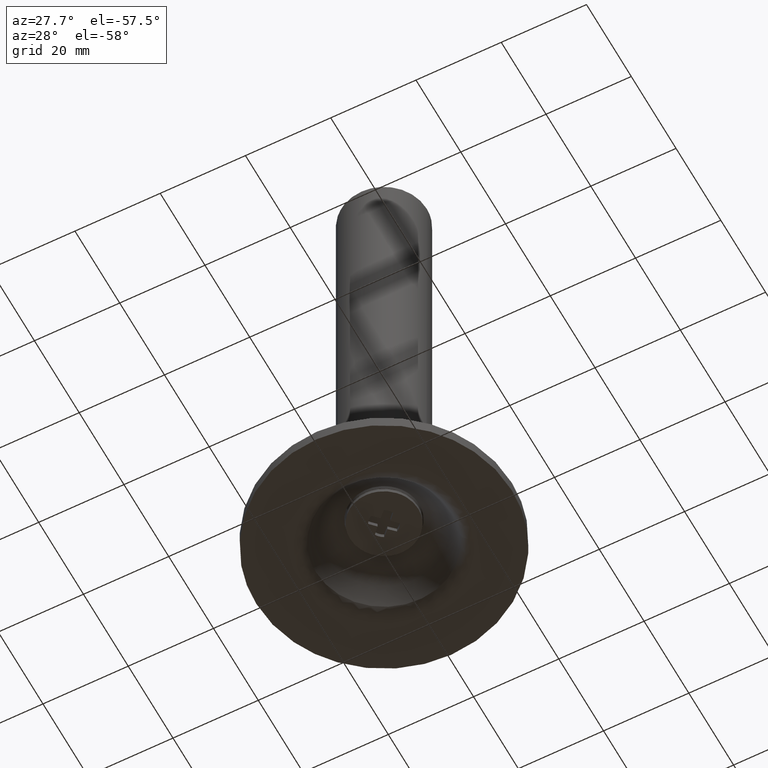
[diagram: clean part render]
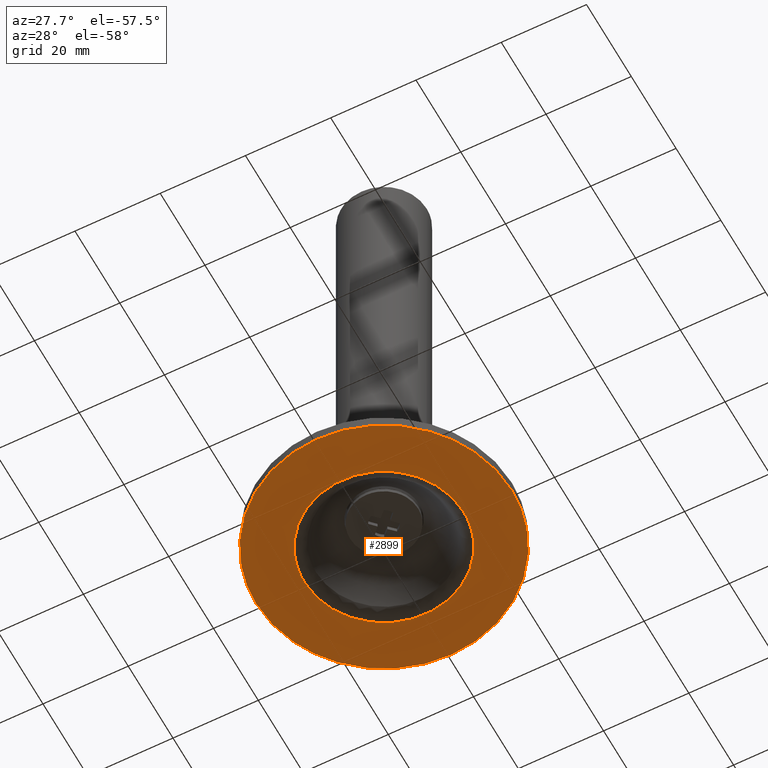
[diagram: same view with one face highlighted and labeled with its STEP entity id]
A machine part, auxiliary view. The second image highlights one B-rep face of the part: STEP entity #2899.
In plain terms, the highlighted face is a freeform B-spline surface patch.
Its self-contained STEP definition (entity closure, byte-faithful):
#2375=CARTESIAN_POINT('',(21.761230891194320,-20.650637056703690,2.012279E-016));
#2376=VERTEX_POINT('',#2375);
#2382=CARTESIAN_POINT('',(30.0,0.0,0.0));
#2383=VERTEX_POINT('',#2382);
#2384=CARTESIAN_POINT('',(30.0,0.0,0.0));
#2385=CARTESIAN_POINT('',(30.000419515974809,-2.253970820688952,2.196358E-017));
#2386=CARTESIAN_POINT('',(29.590269978847100,-5.871916545401108,5.721826E-017));
#2387=CARTESIAN_POINT('',(28.230835860867280,-10.367608884154940,1.010261E-016));
#2388=CARTESIAN_POINT('',(26.697434428904131,-13.846130230542739,1.349221E-016));
#2389=CARTESIAN_POINT('',(24.660481669365481,-17.269190000264160,1.682778E-016));
#2390=CARTESIAN_POINT('',(22.822854922816280,-19.532053420265001,1.903280E-016));
#2391=CARTESIAN_POINT('',(21.761230891194320,-20.650637056703690,2.012279E-016));
#2392=B_SPLINE_CURVE_WITH_KNOTS('',3,(#2384,#2385,#2386,#2387,#2388,#2389,#2390,#2391),.UNSPECIFIED.,.F.,.U.,(4,1,1,1,1,4),(0.000000015807675,6.761801051471448,10.854473476168630,14.057407197869709,18.150091050356171,22.776580013576851),.UNSPECIFIED.);
#2393=EDGE_CURVE('',#2383,#2376,#2392,.T.);
#2395=CARTESIAN_POINT('',(0.000001285255829,29.999999999999979,0.0));
#2396=VERTEX_POINT('',#2395);
#2397=CARTESIAN_POINT('',(0.000001285255829,29.999999999999979,0.0));
#2398=CARTESIAN_POINT('',(1.472616346920259,30.000082548014991,0.0));
#2399=CARTESIAN_POINT('',(4.049670634777124,29.809837524544822,0.0));
#2400=CARTESIAN_POINT('',(8.203324890289700,28.957201081564492,0.0));
#2401=CARTESIAN_POINT('',(11.917517081191740,27.641086521277181,0.0));
#2402=CARTESIAN_POINT('',(15.621490069038630,25.704784940489191,0.0));
#2403=CARTESIAN_POINT('',(19.004852102437141,23.352994727966969,0.0));
#2404=CARTESIAN_POINT('',(22.053966321153990,20.485423043630622,0.0));
#2405=CARTESIAN_POINT('',(24.397092368049119,17.557641329869760,0.0));
#2406=CARTESIAN_POINT('',(26.312336689111170,14.553632018424629,0.0));
#2407=CARTESIAN_POINT('',(27.840560976180580,11.398005703075549,0.0));
#2408=CARTESIAN_POINT('',(28.910737178602190,8.191367312854254,0.0));
#2409=CARTESIAN_POINT('',(29.756373070895350,4.479155697700390,0.0));
#2410=CARTESIAN_POINT('',(30.000202255076719,1.840794827647816,0.0));
#2411=CARTESIAN_POINT('',(30.0,0.0,0.0));
#2412=B_SPLINE_CURVE_WITH_KNOTS('',3,(#2397,#2398,#2399,#2400,#2401,#2402,#2403,#2404,#2405,#2406,#2407,#2408,#2409,#2410,#2411),.UNSPECIFIED.,.F.,.U.,(4,1,1,1,1,1,1,1,1,1,1,1,4),(0.000000062463350,4.417839930469896,7.731258237705163,12.701382815081420,16.198881820865392,20.248612139342161,25.034594490545299,28.716135544002441,31.477317389359719,35.711128584388327,39.208627142801710,41.601626784429143,47.123963003160327),.UNSPECIFIED.);
#2413=EDGE_CURVE('',#2396,#2383,#2412,.T.);
#2415=CARTESIAN_POINT('',(-21.761230891194430,20.650637056703800,2.012279E-016));
#2416=VERTEX_POINT('',#2415);
#2417=CARTESIAN_POINT('',(-21.761230891194430,20.650637056703800,2.012279E-016));
#2418=CARTESIAN_POINT('',(-20.452045249108149,22.030578430989770,1.891218E-016));
#2419=CARTESIAN_POINT('',(-18.338425449310940,23.870708689295519,1.695770E-016));
#2420=CARTESIAN_POINT('',(-14.987247070362610,26.051789460151671,1.385883E-016));
#2421=CARTESIAN_POINT('',(-11.706585071869180,27.728158699407039,1.082518E-016));
#2422=CARTESIAN_POINT('',(-8.340286633281346,28.891988019994720,7.712334E-017));
#2423=CARTESIAN_POINT('',(-4.311453418524470,29.774168386443119,3.986838E-017));
#2424=CARTESIAN_POINT('',(-1.775342897569864,30.000195806537771,1.641676E-017));
#2425=CARTESIAN_POINT('',(0.000001285255829,29.999999999999979,0.0));
#2426=B_SPLINE_CURVE_WITH_KNOTS('',3,(#2417,#2418,#2419,#2420,#2421,#2422,#2423,#2424,#2425),.UNSPECIFIED.,.F.,.U.,(4,1,1,1,1,1,4),(0.000000017499726,5.706416648892173,8.369414665329236,11.983498020217461,16.738826669133040,19.021394667749810,24.347384993616579),.UNSPECIFIED.);
#2427=EDGE_CURVE('',#2416,#2396,#2426,.T.);
#2457=CARTESIAN_POINT('',(-30.0,0.0,0.0));
#2458=VERTEX_POINT('',#2457);
#2459=CARTESIAN_POINT('',(-30.0,0.0,0.0));
#2460=CARTESIAN_POINT('',(-30.000068682624029,1.423536801254328,1.387150E-017));
#2461=CARTESIAN_POINT('',(-29.809654632438349,4.092645093975104,3.988034E-017));
#2462=CARTESIAN_POINT('',(-28.952277691115359,8.224086585077515,8.013873E-017));
#2463=CARTESIAN_POINT('',(-27.467588324607782,12.368473653902440,1.205233E-016));
#2464=CARTESIAN_POINT('',(-25.094448984907132,16.699823919535280,1.627296E-016));
#2465=CARTESIAN_POINT('',(-22.986245824839799,19.360011219462368,1.886516E-016));
#2466=CARTESIAN_POINT('',(-21.761230891194430,20.650637056703800,2.012279E-016));
#2467=B_SPLINE_CURVE_WITH_KNOTS('',3,(#2459,#2460,#2461,#2462,#2463,#2464,#2465,#2466),.UNSPECIFIED.,.F.,.U.,(4,1,1,1,1,4),(0.000000015810826,4.270606151526916,8.007401124715250,12.633879855271140,17.438319538125509,22.776580013576918),.UNSPECIFIED.);
#2468=EDGE_CURVE('',#2458,#2416,#2467,.T.);
#2470=CARTESIAN_POINT('',(-0.000001285256468,-29.999999999999972,0.0));
#2471=VERTEX_POINT('',#2470);
#2472=CARTESIAN_POINT('',(-0.000001285256468,-29.999999999999972,0.0));
#2473=CARTESIAN_POINT('',(-2.208979523332149,-30.000439176169181,0.0));
#2474=CARTESIAN_POINT('',(-5.338107173978826,-29.652771202403219,0.0));
#2475=CARTESIAN_POINT('',(-9.307781218601866,-28.567151572554302,0.0));
#2476=CARTESIAN_POINT('',(-12.410187004064049,-27.392332663931128,0.0));
#2477=CARTESIAN_POINT('',(-15.626483467089400,-25.711054342715521,0.0));
#2478=CARTESIAN_POINT('',(-18.742635781014599,-23.516377352816129,0.0));
#2479=CARTESIAN_POINT('',(-21.619732344962621,-20.924805633604532,0.0));
#2480=CARTESIAN_POINT('',(-23.973842837454551,-18.161649611901328,0.0));
#2481=CARTESIAN_POINT('',(-26.002800900090939,-15.084306023837110,0.0));
#2482=CARTESIAN_POINT('',(-27.373624877375931,-12.402030179653559,0.0));
#2483=CARTESIAN_POINT('',(-28.754886982736888,-8.854085300975033,0.0));
#2484=CARTESIAN_POINT('',(-29.745412638863989,-4.847373684794547,0.0));
#2485=CARTESIAN_POINT('',(-30.000069173030919,-1.533968703163960,0.0));
#2486=CARTESIAN_POINT('',(-30.0,0.0,0.0));
#2487=B_SPLINE_CURVE_WITH_KNOTS('',3,(#2472,#2473,#2474,#2475,#2476,#2477,#2478,#2479,#2480,#2481,#2482,#2483,#2484,#2485,#2486),.UNSPECIFIED.,.F.,.U.,(4,1,1,1,1,1,1,1,1,1,1,1,4),(0.000000062526524,6.626804361821172,9.387973034884901,12.333227610701689,16.567022773582622,20.248612139377169,23.746021498165170,28.163900118080580,31.109176673164800,34.790736097233612,37.183759473597860,42.522044414064752,47.123963003159730),.UNSPECIFIED.);
#2488=EDGE_CURVE('',#2471,#2458,#2487,.T.);
#2490=CARTESIAN_POINT('',(21.761230891194320,-20.650637056703690,2.012279E-016));
#2491=CARTESIAN_POINT('',(20.277578068370651,-22.214686019085740,1.875085E-016));
#2492=CARTESIAN_POINT('',(17.943419251609718,-24.195054461077550,1.659243E-016));
#2493=CARTESIAN_POINT('',(14.159634606130849,-26.523271357241828,1.309353E-016));
#2494=CARTESIAN_POINT('',(10.647746704138690,-28.165967546857161,9.846061E-017));
#2495=CARTESIAN_POINT('',(5.769701912513412,-29.613640507543980,5.335293E-017));
#2496=CARTESIAN_POINT('',(2.092375667636415,-30.000337793668649,1.934838E-017));
#2497=CARTESIAN_POINT('',(-0.000001285256468,-29.999999999999972,0.0));
#2498=B_SPLINE_CURVE_WITH_KNOTS('',3,(#2490,#2491,#2492,#2493,#2494,#2495,#2496,#2497),.UNSPECIFIED.,.F.,.U.,(4,1,1,1,1,4),(0.000000017499790,6.467275874160933,9.130271021566784,13.314954178382591,18.070324297140441,24.347384993617140),.UNSPECIFIED.);
#2499=EDGE_CURVE('',#2376,#2471,#2498,.T.);
#2644=CARTESIAN_POINT('',(-17.362253347923669,-6.874202396565321,4.315978E-016));
#2645=VERTEX_POINT('',#2644);
#2657=CARTESIAN_POINT('',(-18.673577589738851,0.0,0.0));
#2658=VERTEX_POINT('',#2657);
#2659=CARTESIAN_POINT('',(-17.362253347923669,-6.874202396565321,4.315978E-016));
#2660=CARTESIAN_POINT('',(-17.699708235000660,-6.021946712732804,3.760679E-016));
#2661=CARTESIAN_POINT('',(-18.402655599326462,-3.776417021377144,2.319087E-016));
#2662=CARTESIAN_POINT('',(-18.673864389339570,-1.429983997520410,8.662605E-017));
#2663=CARTESIAN_POINT('',(-18.673577589738851,0.0,0.0));
#2664=B_SPLINE_CURVE_WITH_KNOTS('',3,(#2659,#2660,#2661,#2662,#2663),.UNSPECIFIED.,.F.,.U.,(4,1,4),(4.302859E-009,2.749916890353310,7.039783078021220),.UNSPECIFIED.);
#2665=EDGE_CURVE('',#2645,#2658,#2664,.T.);
#2667=CARTESIAN_POINT('',(17.362253347923669,6.874202396565314,4.932547E-016));
#2668=VERTEX_POINT('',#2667);
#2669=CARTESIAN_POINT('',(-18.673577589738851,0.0,0.0));
#2670=CARTESIAN_POINT('',(-18.673579964635412,0.403305305254326,1.016066E-018));
#2671=CARTESIAN_POINT('',(-18.659406034504869,0.840209730059630,2.304013E-018));
#2672=CARTESIAN_POINT('',(-18.627765876507191,1.309663031923875,3.904646E-018));
#2673=CARTESIAN_POINT('',(-18.619883775485111,1.410176698525134,4.261984E-018));
#2674=CARTESIAN_POINT('',(-18.609979671007640,1.544254105534850,4.730589E-018));
#2675=CARTESIAN_POINT('',(-18.572092790657500,1.979556510106952,6.327683E-018));
#2676=CARTESIAN_POINT('',(-18.516318337672089,2.446957610673935,8.241895E-018));
#2677=CARTESIAN_POINT('',(-18.450682053511951,2.878947442119786,1.019714E-017));
#2678=CARTESIAN_POINT('',(-18.428754241530431,3.011589973781238,1.082093E-017));
#2679=CARTESIAN_POINT('',(-18.412750382347859,3.111135789668157,1.128309E-017));
#2680=CARTESIAN_POINT('',(-18.259098434304441,4.005520058746315,1.556575E-017));
#2681=CARTESIAN_POINT('',(-17.778066623752711,5.968659132682212,2.686486E-017));
#2682=CARTESIAN_POINT('',(-16.990480022046789,7.834340836675514,4.196719E-017));
#2683=CARTESIAN_POINT('',(-16.416624428948200,8.899575820937423,5.223005E-017));
#2684=CARTESIAN_POINT('',(-16.367881438472018,8.987831492366990,5.309616E-017));
#2685=CARTESIAN_POINT('',(-16.303351773670212,9.105771413295118,5.424556E-017));
#2686=CARTESIAN_POINT('',(-15.660104556854019,10.247928647603841,6.561870E-017));
#2687=CARTESIAN_POINT('',(-14.411980345575961,12.012318012742190,8.654828E-017));
#2688=CARTESIAN_POINT('',(-12.273021554963700,14.161795082383430,1.202136E-016));
#2689=CARTESIAN_POINT('',(-10.140464509123630,15.756382066147211,1.523963E-016));
#2690=CARTESIAN_POINT('',(-8.543182733621547,16.626877505700580,1.756852E-016));
#2691=CARTESIAN_POINT('',(-7.717877746049376,17.004201981558150,1.875359E-016));
#2692=CARTESIAN_POINT('',(-7.625741423880946,17.045146591445889,1.888559E-016));
#2693=CARTESIAN_POINT('',(-7.503132859367421,17.100303475697860,1.906142E-016));
#2694=CARTESIAN_POINT('',(-7.379806464326159,17.153864982786569,1.923780E-016));
#2695=CARTESIAN_POINT('',(-7.255821464251974,17.205850132639270,1.941464E-016));
#2696=CARTESIAN_POINT('',(-7.163090487001746,17.245461180197658,1.954710E-016));
#2697=CARTESIAN_POINT('',(-7.069563473826423,17.283153412660649,1.968012E-016));
#2698=CARTESIAN_POINT('',(-7.007473346684387,17.308915361443191,1.976861E-016));
#2699=CARTESIAN_POINT('',(-6.352784482478645,17.572616501749820,2.069972E-016));
#2700=CARTESIAN_POINT('',(-5.715689808571288,17.790045148822369,2.159592E-016));
#2701=CARTESIAN_POINT('',(-5.036379141758844,17.981604790933879,2.254137E-016));
#2702=CARTESIAN_POINT('',(-4.971489892784160,17.999177919528378,2.263150E-016));
#2703=CARTESIAN_POINT('',(-4.874428390375297,18.026529989415671,2.276658E-016));
#2704=CARTESIAN_POINT('',(-4.776810321366566,18.051820936257620,2.290188E-016));
#2705=CARTESIAN_POINT('',(-4.711908715087487,18.069342757239038,2.299201E-016));
#2706=CARTESIAN_POINT('',(-4.191352992375213,18.204100115201790,2.371348E-016));
#2707=CARTESIAN_POINT('',(-3.665334823279329,18.317791683511540,2.443685E-016));
#2708=CARTESIAN_POINT('',(-3.102147650673723,18.413903924114130,2.520488E-016));
#2709=CARTESIAN_POINT('',(-3.002730423806417,18.430723579831529,2.534042E-016));
#2710=CARTESIAN_POINT('',(-1.741614804160024,18.632813922099711,2.705693E-016));
#2711=CARTESIAN_POINT('',(0.213590652044236,18.747840486663410,2.966821E-016));
#2712=CARTESIAN_POINT('',(2.995128300138612,18.482816499486511,3.327509E-016));
#2713=CARTESIAN_POINT('',(5.821783952522936,17.845370305881790,3.684774E-016));
#2714=CARTESIAN_POINT('',(8.844642653578367,16.576726202278120,4.052049E-016));
#2715=CARTESIAN_POINT('',(11.509357952288861,14.796037171941469,4.359122E-016));
#2716=CARTESIAN_POINT('',(13.473789801372099,13.001370293023561,4.573355E-016));
#2717=CARTESIAN_POINT('',(14.519647100087720,11.768929806122850,4.680434E-016));
#2718=CARTESIAN_POINT('',(15.020723897082179,11.094432995338479,4.729620E-016));
#2719=CARTESIAN_POINT('',(15.080028130582130,11.012896512576750,4.735398E-016));
#2720=CARTESIAN_POINT('',(15.199046881459131,10.850089292563091,4.747015E-016));
#2721=CARTESIAN_POINT('',(15.334356246698370,10.657599356415110,4.760036E-016));
#2722=CARTESIAN_POINT('',(15.467222355874410,10.463422602609601,4.772692E-016));
#2723=CARTESIAN_POINT('',(15.541641577790600,10.351453252858921,4.779700E-016));
#2724=CARTESIAN_POINT('',(15.746029705166370,10.043384785026250,4.798932E-016));
#2725=CARTESIAN_POINT('',(15.923971062919589,9.758141331414217,4.815247E-016));
#2726=CARTESIAN_POINT('',(16.094898578796020,9.468758820209722,4.830531E-016));
#2727=CARTESIAN_POINT('',(16.128487305438149,9.410526855048715,4.833500E-016));
#2728=CARTESIAN_POINT('',(16.179757736056722,9.323694250963563,4.838084E-016));
#2729=CARTESIAN_POINT('',(16.229178312881469,9.235796000204493,4.842397E-016));
#2730=CARTESIAN_POINT('',(16.262717506073582,9.177536323416193,4.845358E-016));
#2731=CARTESIAN_POINT('',(16.427389966156159,8.884546331003453,4.859726E-016));
#2732=CARTESIAN_POINT('',(16.569162629959440,8.617241151795660,4.871715E-016));
#2733=CARTESIAN_POINT('',(16.719379549028581,8.316582819049122,4.883980E-016));
#2734=CARTESIAN_POINT('',(16.748801608653810,8.256137119588024,4.886343E-016));
#2735=CARTESIAN_POINT('',(16.793855352442129,8.165920502772833,4.890020E-016));
#2736=CARTESIAN_POINT('',(16.836988808152071,8.074770978602595,4.893421E-016));
#2737=CARTESIAN_POINT('',(16.866361874738271,8.014302966342735,4.895777E-016));
#2738=CARTESIAN_POINT('',(17.053177060127918,7.619348769510648,4.910499E-016));
#2739=CARTESIAN_POINT('',(17.213790671348558,7.249179427283307,4.922386E-016));
#2740=CARTESIAN_POINT('',(17.362253347923669,6.874202396565314,4.932547E-016));
#2741=B_SPLINE_CURVE_WITH_KNOTS('',3,(#2669,#2670,#2671,#2672,#2673,#2674,#2675,#2676,#2677,#2678,#2679,#2680,#2681,#2682,#2683,#2684,#2685,#2686,#2687,#2688,#2689,#2690,#2691,#2692,#2693,#2694,#2695,#2696,#2697,#2698,#2699,#2700,#2701,#2702,#2703,#2704,#2705,#2706,#2707,#2708,#2709,#2710,#2711,#2712,#2713,#2714,#2715,#2716,#2717,#2718,#2719,#2720,#2721,#2722,#2723,#2724,#2725,#2726,#2727,#2728,#2729,#2730,#2731,#2732,#2733,#2734,#2735,#2736,#2737,#2738,#2739,#2740),.UNSPECIFIED.,.F.,.U.,(4,1,1,1,1,1,1,1,1,1,1,1,1,1,1,1,1,1,1,1,1,1,1,1,1,1,1,1,2,2,1,1,1,2,1,1,1,1,1,1,1,1,1,1,1,1,1,1,1,1,1,1,2,1,1,1,2,2,1,1,1,2,4),(0.000238171979490,1.210155685283127,1.310955715194567,1.411787883502647,1.512620051810764,1.714283292413178,2.722600585782367,2.924264986236274,3.025096696120606,3.125928406004881,3.226735240104702,5.747546341967386,9.175779852199696,9.276585269464171,9.377415837743961,9.478246406023693,9.679907551454647,13.309808777794020,15.931404116776260,18.754653982835510,21.275421487035072,21.376223765533481,21.477057954341099,21.577892143148691,21.779559886067499,21.880393310333091,21.981226734598671,22.082059566260870,22.182892397923158,24.199467874122750,24.300306934774760,24.401145995426742,24.501982765002278,24.602819534577780,26.115136385418442,26.215973107723659,26.316809830028859,26.417630608981490,30.047518590953018,32.164973953661793,34.786560705441673,38.718949229838692,41.945525176645127,44.365448515808289,46.684564513638932,46.785366576919643,46.886200069321262,46.987033561722903,47.390366596411027,47.592032242541691,47.692864617806329,47.793696993070981,48.701143749653973,48.801979825322881,48.902815900991797,49.003651013708712,49.104486126425613,50.011939957619433,50.112778001247889,50.213616044876353,50.314451938462177,50.415287832048037,51.625182167753962),.UNSPECIFIED.);
#2742=EDGE_CURVE('',#2658,#2668,#2741,.T.);
#2790=CARTESIAN_POINT('',(18.673577589738851,0.0,0.0));
#2791=VERTEX_POINT('',#2790);
#2792=CARTESIAN_POINT('',(17.362253347923669,6.874202396565314,4.932547E-016));
#2793=CARTESIAN_POINT('',(17.740237467024151,5.919681559729279,4.221762E-016));
#2794=CARTESIAN_POINT('',(18.423676913647160,3.666461653370946,2.571481E-016));
#2795=CARTESIAN_POINT('',(18.673779010151801,1.319972124250855,9.138565E-017));
#2796=CARTESIAN_POINT('',(18.673577589738851,0.0,0.0));
#2797=B_SPLINE_CURVE_WITH_KNOTS('',3,(#2792,#2793,#2794,#2795,#2796),.UNSPECIFIED.,.F.,.U.,(4,1,4),(4.302941E-009,3.079911756511686,7.039783078021211),.UNSPECIFIED.);
#2798=EDGE_CURVE('',#2668,#2791,#2797,.T.);
#2800=CARTESIAN_POINT('',(18.673577589738851,0.0,0.0));
#2801=CARTESIAN_POINT('',(18.673580293433989,-0.403305110482104,8.890536E-019));
#2802=CARTESIAN_POINT('',(18.659405859371951,-0.840209920036374,2.016014E-018));
#2803=CARTESIAN_POINT('',(18.627765893636649,-1.309663009025677,3.416565E-018));
#2804=CARTESIAN_POINT('',(18.619883767631929,-1.410176756077637,3.729236E-018));
#2805=CARTESIAN_POINT('',(18.609979576959859,-1.544254727966130,4.139267E-018));
#2806=CARTESIAN_POINT('',(18.572093315449891,-1.979553016493308,5.536709E-018));
#2807=CARTESIAN_POINT('',(18.516318173392751,-2.446958856046489,7.211662E-018));
#2808=CARTESIAN_POINT('',(18.450682014430601,-2.878947276943312,8.922496E-018));
#2809=CARTESIAN_POINT('',(18.428754529663721,-3.011590042806459,9.468309E-018));
#2810=CARTESIAN_POINT('',(18.412722466770528,-3.111127759219552,9.873012E-018));
#2811=CARTESIAN_POINT('',(18.179694776885921,-4.469345407352353,1.556015E-017));
#2812=CARTESIAN_POINT('',(17.622641107218691,-6.419111330799094,2.629593E-017));
#2813=CARTESIAN_POINT('',(16.767210811692308,-8.248557297317792,4.021461E-017));
#2814=CARTESIAN_POINT('',(16.416640529506150,-8.899582899701276,4.570112E-017));
#2815=CARTESIAN_POINT('',(16.367880960978280,-8.987831153221483,4.645915E-017));
#2816=CARTESIAN_POINT('',(16.303366447866399,-9.105781019391907,4.746472E-017));
#2817=CARTESIAN_POINT('',(15.791944532677620,-10.013567512264119,5.537612E-017));
#2818=CARTESIAN_POINT('',(14.584693833613169,-11.801343742664260,7.326871E-017));
#2819=CARTESIAN_POINT('',(12.489034296006640,-14.000374049366370,1.023347E-016));
#2820=CARTESIAN_POINT('',(10.140456351996820,-15.756371895273491,1.333468E-016));
#2821=CARTESIAN_POINT('',(8.543182676440207,-16.626879239378130,1.537246E-016));
#2822=CARTESIAN_POINT('',(7.717877761709055,-17.004201806197720,1.640939E-016));
#2823=CARTESIAN_POINT('',(7.625741426979670,-17.045146565978978,1.652489E-016));
#2824=CARTESIAN_POINT('',(7.503132858210410,-17.100303485208400,1.667874E-016));
#2825=CARTESIAN_POINT('',(7.379806464845265,-17.153864978520971,1.683307E-016));
#2826=CARTESIAN_POINT('',(7.255821464148047,-17.205850133492440,1.698781E-016));
#2827=CARTESIAN_POINT('',(7.163090487001736,-17.245461180197658,1.710371E-016));
#2828=CARTESIAN_POINT('',(7.069563473826573,-17.283153412660589,1.722010E-016));
#2829=CARTESIAN_POINT('',(7.007473248555570,-17.308915389006000,1.729754E-016));
#2830=CARTESIAN_POINT('',(6.352785134801207,-17.572616318632988,1.811225E-016));
#2831=CARTESIAN_POINT('',(5.715690231281267,-17.790045060589240,1.889643E-016));
#2832=CARTESIAN_POINT('',(5.036379085331579,-17.981604803059771,1.972370E-016));
#2833=CARTESIAN_POINT('',(4.971489892784322,-17.999177919528350,1.980256E-016));
#2834=CARTESIAN_POINT('',(4.874428390375287,-18.026529989415678,1.992076E-016));
#2835=CARTESIAN_POINT('',(4.776810321366567,-18.051820936257631,2.003915E-016));
#2836=CARTESIAN_POINT('',(4.711908586826567,-18.069342366630380,2.011801E-016));
#2837=CARTESIAN_POINT('',(4.191354184376289,-18.204103824857640,2.074929E-016));
#2838=CARTESIAN_POINT('',(3.665333620255117,-18.317787240299221,2.138224E-016));
#2839=CARTESIAN_POINT('',(3.102147772102330,-18.413904499605071,2.205427E-016));
#2840=CARTESIAN_POINT('',(3.002730980875661,-18.430737160861721,2.217287E-016));
#2841=CARTESIAN_POINT('',(2.007106878347007,-18.590173662341648,2.335860E-016));
#2842=CARTESIAN_POINT('',(0.394435687461762,-18.720197656866489,2.525093E-016));
#2843=CARTESIAN_POINT('',(-1.992455573042486,-18.609392005418560,2.798488E-016));
#2844=CARTESIAN_POINT('',(-4.319078952322280,-18.228061556213511,3.058955E-016));
#2845=CARTESIAN_POINT('',(-6.604751336131363,-17.520563912561329,3.307499E-016));
#2846=CARTESIAN_POINT('',(-8.779918297739076,-16.530696955792880,3.537048E-016));
#2847=CARTESIAN_POINT('',(-10.967743532376231,-15.201879465613560,3.760588E-016));
#2848=CARTESIAN_POINT('',(-13.114676139910321,-13.404365918262110,3.969069E-016));
#2849=CARTESIAN_POINT('',(-14.439498027754560,-11.876864046369020,4.088497E-016));
#2850=CARTESIAN_POINT('',(-15.020719431696691,-11.094429090456799,4.138416E-016));
#2851=CARTESIAN_POINT('',(-15.079975415068100,-11.012856596226110,4.143466E-016));
#2852=CARTESIAN_POINT('',(-15.159538783766781,-10.904480811434080,4.150272E-016));
#2853=CARTESIAN_POINT('',(-15.295822060945749,-10.712687039632449,4.161793E-016));
#2854=CARTESIAN_POINT('',(-15.429924467449530,-10.519351804142470,4.173028E-016));
#2855=CARTESIAN_POINT('',(-15.541660487124460,-10.351465395469351,4.182240E-016));
#2856=CARTESIAN_POINT('',(-15.746026336377950,-10.043382621761481,4.199065E-016));
#2857=CARTESIAN_POINT('',(-15.923971363120000,-9.758141524188037,4.213341E-016));
#2858=CARTESIAN_POINT('',(-16.094898578796041,-9.468758820209700,4.226715E-016));
#2859=CARTESIAN_POINT('',(-16.128487305438149,-9.410526855048717,4.229313E-016));
#2860=CARTESIAN_POINT('',(-16.179757736056700,-9.323694250963575,4.233324E-016));
#2861=CARTESIAN_POINT('',(-16.229178312881469,-9.235796000204484,4.237097E-016));
#2862=CARTESIAN_POINT('',(-16.262718766113341,-9.177537019046078,4.239689E-016));
#2863=CARTESIAN_POINT('',(-16.427381811472308,-8.884541850804508,4.252259E-016));
#2864=CARTESIAN_POINT('',(-16.569170882930649,-8.617245394463639,4.262752E-016));
#2865=CARTESIAN_POINT('',(-16.719378271574222,-8.316582165658996,4.273482E-016));
#2866=CARTESIAN_POINT('',(-16.748801608653800,-8.256137119588038,4.275550E-016));
#2867=CARTESIAN_POINT('',(-16.793855352442140,-8.165920502772821,4.278768E-016));
#2868=CARTESIAN_POINT('',(-16.836988808152050,-8.074770978602626,4.281743E-016));
#2869=CARTESIAN_POINT('',(-16.866361839067700,-8.014303026560302,4.283805E-016));
#2870=CARTESIAN_POINT('',(-17.053177387991859,-7.619348184852526,4.296687E-016));
#2871=CARTESIAN_POINT('',(-17.213789989450330,-7.249180757197849,4.307088E-016));
#2872=CARTESIAN_POINT('',(-17.362253347923669,-6.874202396565321,4.315978E-016));
#2873=B_SPLINE_CURVE_WITH_KNOTS('',3,(#2800,#2801,#2802,#2803,#2804,#2805,#2806,#2807,#2808,#2809,#2810,#2811,#2812,#2813,#2814,#2815,#2816,#2817,#2818,#2819,#2820,#2821,#2822,#2823,#2824,#2825,#2826,#2827,#2828,#2829,#2830,#2831,#2832,#2833,#2834,#2835,#2836,#2837,#2838,#2839,#2840,#2841,#2842,#2843,#2844,#2845,#2846,#2847,#2848,#2849,#2850,#2851,#2852,#2853,#2854,#2855,#2856,#2857,#2858,#2859,#2860,#2861,#2862,#2863,#2864,#2865,#2866,#2867,#2868,#2869,#2870,#2871,#2872),.UNSPECIFIED.,.F.,.U.,(4,1,1,1,1,1,1,1,1,1,1,1,1,1,1,1,1,1,1,1,1,1,1,1,1,1,1,1,2,2,1,1,1,2,1,1,1,1,1,1,1,1,1,1,1,1,1,1,1,1,1,1,1,2,1,1,1,2,2,1,1,1,2,4),(0.000238171963488,1.210155685267395,1.310955715178828,1.411787883486909,1.512620051795082,1.714283292397525,2.722600585766934,2.924264986220940,3.025096696105273,3.125928405989548,3.226735240089376,7.159176194095878,9.175779852185841,9.276585269450365,9.377415837730155,9.478246406009923,9.679907551440891,12.503163965195251,15.931404116763870,18.754653982823658,21.275421487024079,21.376223765522429,21.477057954330139,21.577892143137809,21.779559886056710,21.880393310322329,21.981226734587949,22.082059566250219,22.182892397912529,24.199467874113260,24.300306934765281,24.401145995417359,24.501982764992938,24.602819534568539,26.115136385409858,26.215973107715069,26.316809830020311,26.417630608973020,29.240882619599748,31.156682845257659,33.576595303072537,36.299021408129633,38.315627590559608,40.735559147659181,43.962129756061728,46.684564513638037,46.785366576918761,46.886200069320417,46.987033561722072,47.188700297802768,47.592032242541073,47.692864617805718,47.793696993070427,48.701143749653632,48.801979825322547,48.902815900991499,49.003651013708442,49.104486126425392,50.011939957619383,50.112778001247847,50.213616044876296,50.314451938462163,50.415287832048008,51.625182167753941),.UNSPECIFIED.);
#2874=EDGE_CURVE('',#2791,#2645,#2873,.T.);
#2880=CARTESIAN_POINT('',(-32.996999883708362,-32.996999883708320,0.0));
#2881=CARTESIAN_POINT('',(32.997001493033771,-32.996999883708320,0.0));
#2882=CARTESIAN_POINT('',(-32.996999883708362,32.997001493033743,0.0));
#2883=CARTESIAN_POINT('',(32.997001493033771,32.997001493033743,0.0));
#2884=B_SPLINE_SURFACE_WITH_KNOTS('',1,1,((#2880,#2882),(#2881,#2883)),.UNSPECIFIED.,.F.,.F.,.U.,(2,2),(2,2),(0.0,65.994001376742119),(0.0,65.994001376742062),.UNSPECIFIED.);
#2885=ORIENTED_EDGE('',*,*,#2468,.T.);
#2886=ORIENTED_EDGE('',*,*,#2427,.T.);
#2887=ORIENTED_EDGE('',*,*,#2413,.T.);
#2888=ORIENTED_EDGE('',*,*,#2393,.T.);
#2889=ORIENTED_EDGE('',*,*,#2499,.T.);
#2890=ORIENTED_EDGE('',*,*,#2488,.T.);
#2891=EDGE_LOOP('',(#2885,#2886,#2887,#2888,#2889,#2890));
#2892=FACE_OUTER_BOUND('',#2891,.T.);
#2893=ORIENTED_EDGE('',*,*,#2742,.F.);
#2894=ORIENTED_EDGE('',*,*,#2665,.F.);
#2895=ORIENTED_EDGE('',*,*,#2874,.F.);
#2896=ORIENTED_EDGE('',*,*,#2798,.F.);
#2897=EDGE_LOOP('',(#2893,#2894,#2895,#2896));
#2898=FACE_BOUND('',#2897,.T.);
#2899=ADVANCED_FACE('',(#2892,#2898),#2884,.F.);